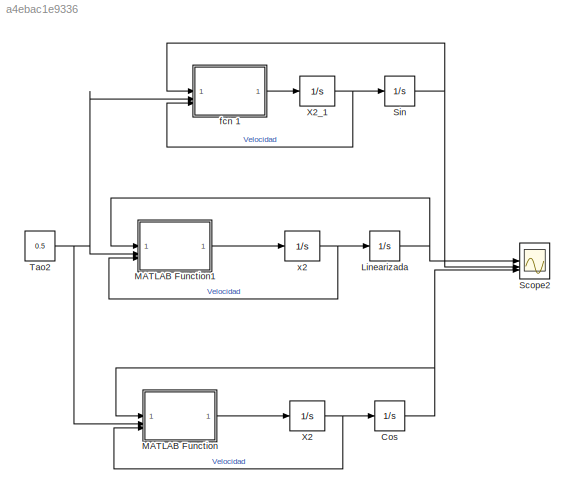
MODEL slx_a4ebac1e9336
KIND model
CONFIG AbsTol = auto
CONFIG EnableMultiTasking = off
CONFIG FixedStep = auto
CONFIG MaxStep = auto
CONFIG MinStep = auto
CONFIG RelTol = 1e-3
CONFIG SampleTimeConstraint = Unconstrained
CONFIG SolverName = VariableStepAuto
CONFIG StartTime = 0.0
CONFIG StopTime = 100
BLOCK [Integrator] Cos
  InitialCondition = 2*pi
BLOCK [Integrator] Linearizada
  InitialCondition = 2*pi
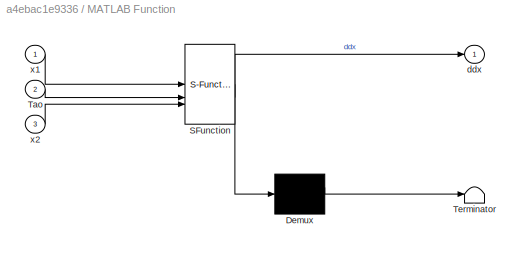
BLOCK [SubSystem] MATLAB Function
  ErrorFcn = Stateflow.Translate.translate
  PermitHierarchicalResolution = ExplicitOnly
  SFBlockType = MATLAB Function
  TreatAsAtomicUnit = on
BLOCK [Demux] MATLAB Function/ Demux 
  Outputs = 1
BLOCK [S-Function] MATLAB Function/ SFunction 
  EnableBusSupport = on
  FunctionName = sf_sfun
  PortCounts = [3 2]
  SFcnIsStateOwnerBlock = off
  SFunctionDeploymentMode = off
  Tag = Stateflow S-Function 2
BLOCK [Terminator] MATLAB Function/ Terminator 
BLOCK [Inport] MATLAB Function/Tao
  Port = 2
BLOCK [Outport] MATLAB Function/ddx
BLOCK [Inport] MATLAB Function/x1
BLOCK [Inport] MATLAB Function/x2
  Port = 3
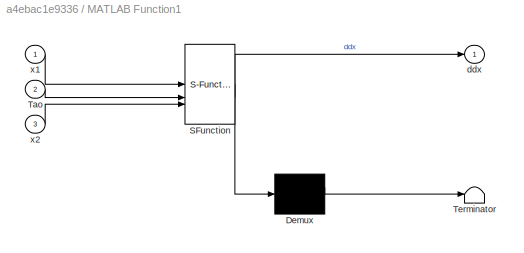
BLOCK [SubSystem] MATLAB Function1
  ErrorFcn = Stateflow.Translate.translate
  PermitHierarchicalResolution = ExplicitOnly
  SFBlockType = MATLAB Function
  TreatAsAtomicUnit = on
BLOCK [Demux] MATLAB Function1/ Demux 
  Outputs = 1
BLOCK [S-Function] MATLAB Function1/ SFunction 
  EnableBusSupport = on
  FunctionName = sf_sfun
  PortCounts = [3 2]
  SFcnIsStateOwnerBlock = off
  SFunctionDeploymentMode = off
  Tag = Stateflow S-Function 1
BLOCK [Terminator] MATLAB Function1/ Terminator 
BLOCK [Inport] MATLAB Function1/Tao
  Port = 2
BLOCK [Outport] MATLAB Function1/ddx
BLOCK [Inport] MATLAB Function1/x1
BLOCK [Inport] MATLAB Function1/x2
  Port = 3
BLOCK [Scope] Scope2
  Floating = off
  NumInputPorts = 3
  ScopeSpecificationString = Simulink.scopes.TimeScopeBlockCfg('CurrentConfiguration', extmgr.ConfigurationSet(extmgr.Configuration('Core','General UI',true,'FigureColor',[1 1 1]),extmgr.Configuration('Core','Source UI',true),extmgr.Configuration('Sources','WiredSimulink',true,'DataLoggingVariableName','ScopeData1'),extmgr.Configuration('Visuals','Time Domain',true,'SerializedDisplays',{struct('MinYLimReal','-6.49337','MaxYLi...<+1762ch>
BLOCK [Integrator] Sin
  InitialCondition = 2*pi
BLOCK [Constant] Tao2
  Value = 0.5
BLOCK [Integrator] X2
BLOCK [Integrator] X2_1
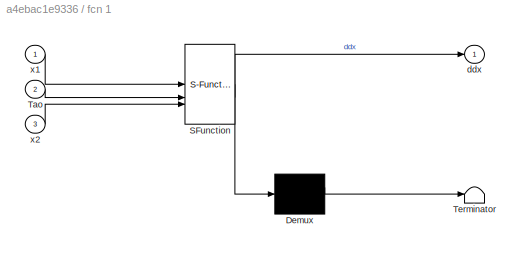
BLOCK [SubSystem] fcn 1
  ErrorFcn = Stateflow.Translate.translate
  PermitHierarchicalResolution = ExplicitOnly
  SFBlockType = MATLAB Function
  TreatAsAtomicUnit = on
BLOCK [Demux] fcn 1/ Demux 
  Outputs = 1
BLOCK [S-Function] fcn 1/ SFunction 
  EnableBusSupport = on
  FunctionName = sf_sfun
  PortCounts = [3 2]
  SFcnIsStateOwnerBlock = off
  SFunctionDeploymentMode = off
  Tag = Stateflow S-Function 3
BLOCK [Terminator] fcn 1/ Terminator 
BLOCK [Inport] fcn 1/Tao
  Port = 2
BLOCK [Outport] fcn 1/ddx
BLOCK [Inport] fcn 1/x1
BLOCK [Inport] fcn 1/x2
  Port = 3
BLOCK [Integrator] x2
NET Cos:1 -> MATLAB Function:1, Scope2:3
NET Linearizada:1 -> MATLAB Function1:1, Scope2:1
LINE MATLAB Function1:1 -> x2:1
LINE MATLAB Function:1 -> X2:1
NET Sin:1 -> Scope2:2, fcn 1:1
NET Tao2:1 -> MATLAB Function1:2, MATLAB Function:2, fcn 1:2
NET X2:1 -> Cos:1, MATLAB Function:3
NET X2_1:1 -> Sin:1, fcn 1:3
LINE fcn 1:1 -> X2_1:1
NET x2:1 -> Linearizada:1, MATLAB Function1:3
note: NET lines group one-source signal fan-out (src -> all destinations, sorted); 1:1 wires keep LINE
CHART MATLAB Function states=1 transitions=1
  STATE_LABEL 'eML_blk_kernel()'
  STATE_LABEL 'SCRIPT:\nfunction ddx = fcn(x1,Tao, x2)\n\nk = 0.01;\nm = 0.75;\nl = 0.36;\ng = 9.8;\n\n%Arguments calculation\na= l/2;\nJ = 4/3*m*a*a;\n\nddx=Tao/J - k*x2/J -m*g*a*cos(x1)/J;\nend\n'
CHART fcn 1 states=1 transitions=1
  STATE_LABEL 'eML_blk_kernel()'
  STATE_LABEL 'SCRIPT:\nfunction ddx = fcn(x1,Tao, x2)\n\nk = 0.01;\nm = 0.75;\nl = 0.36;\ng = 9.8;\n\n%Arguments calculation\na= l/2;\nJ = 4/3*m*a*a;\n\nddx=Tao/J - k*x2/J -m*g*a*sin(x1)/J;\nend\n'
CHART MATLAB Function1 states=1 transitions=1
  STATE_LABEL 'eML_blk_kernel()'
  STATE_LABEL 'SCRIPT:\nfunction ddx = fcn(x1,Tao, x2)\n\nk = 0.01;\nm = 0.75;\nl = 0.36;\ng = 9.8;\n\n%Arguments calculation\na= l/2;\nJ = 4/3*m*a*a;\n\nddx=Tao/J - k*x2/J -m*g*a*x1/J;\nend\n'
CHART  states=0 transitions=0
CHART  states=0 transitions=0
CHART  states=0 transitions=0
